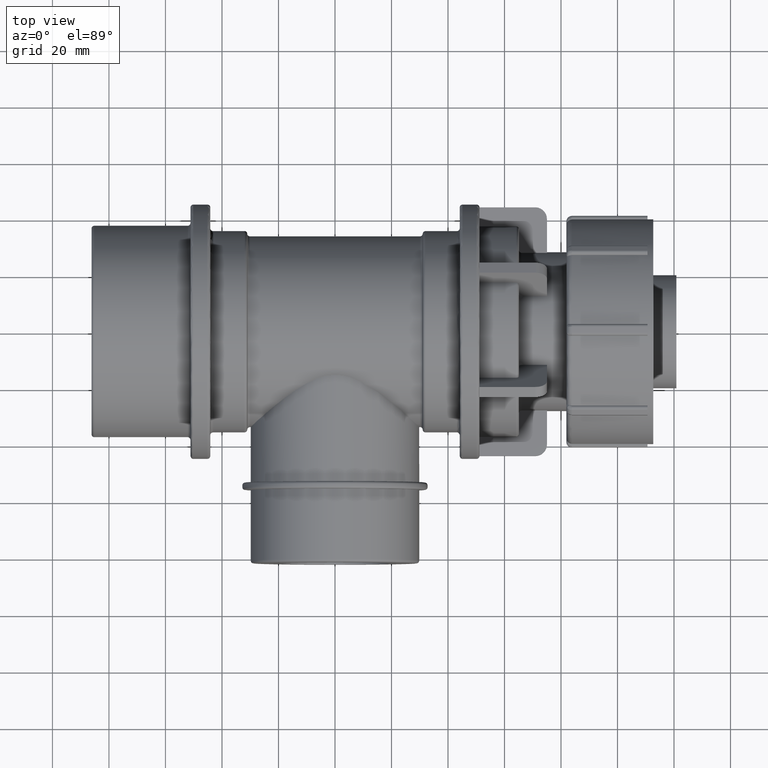
[diagram: clean part render]
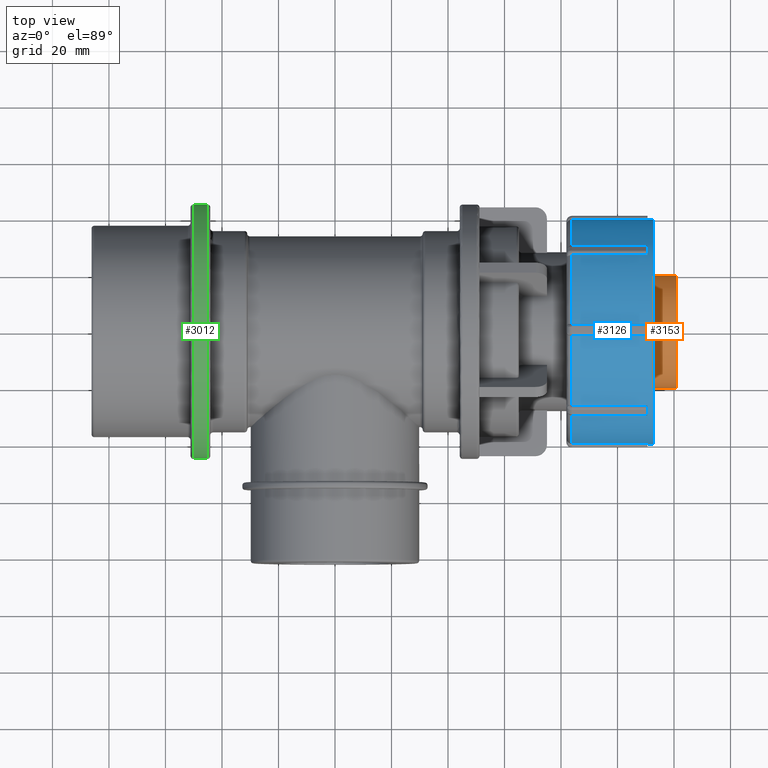
[diagram: same view with three faces highlighted in distinct colors, each labeled with its STEP entity id]
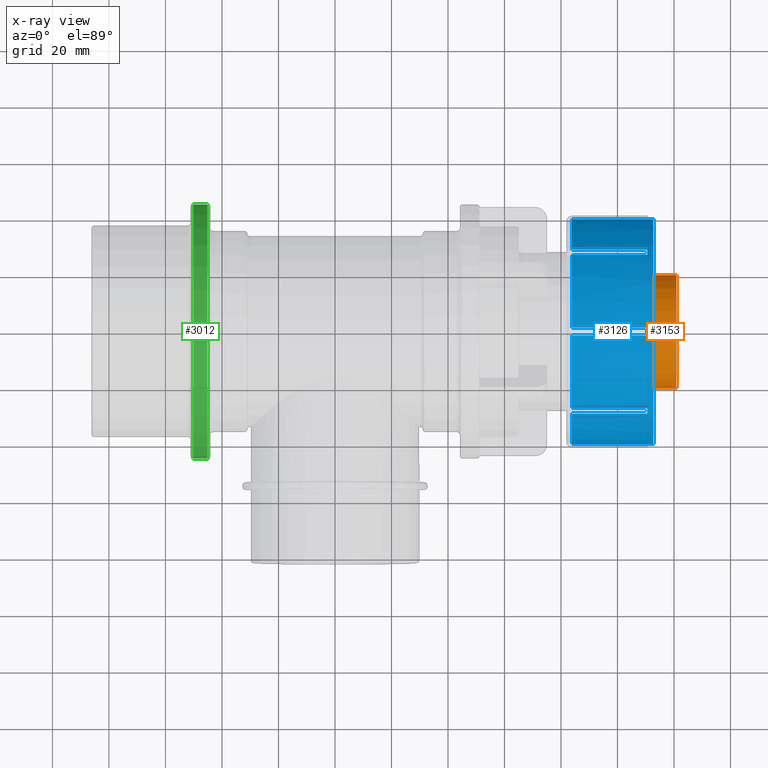
[diagram: x-ray of the same camera — body ghosted, the three highlighted faces saturated]
A machine part, top view with three faces highlighted in distinct colors.
The next image is the same camera in x-ray (body ghosted, the three faces saturated) — at least one of them is partly hidden behind the body in this view.
Their STEP definitions:

[orange] entity #3153 — the highlighted cylindrical surface (bore or boss wall) has radius 20 mm, axis along (1, 0, 0).
#681=CIRCLE('',#3512,20.);
#682=CIRCLE('',#3514,20.);
#775=FACE_BOUND('',#1196,.T.);
#946=FACE_OUTER_BOUND('',#1195,.T.);
#1195=EDGE_LOOP('',(#2711));
#1196=EDGE_LOOP('',(#2712));
#1546=VERTEX_POINT('',#5943);
#1547=VERTEX_POINT('',#5946);
#1952=EDGE_CURVE('',#1546,#1546,#681,.T.);
#1953=EDGE_CURVE('',#1547,#1547,#682,.T.);
#2711=ORIENTED_EDGE('',*,*,#1953,.F.);
#2712=ORIENTED_EDGE('',*,*,#1952,.T.);
#2988=CYLINDRICAL_SURFACE('',#3513,20.);
#3153=ADVANCED_FACE('',(#946,#775),#2988,.T.);
#3512=AXIS2_PLACEMENT_3D('',#5944,#4286,#4287);
#3513=AXIS2_PLACEMENT_3D('',#5945,#4288,#4289);
#3514=AXIS2_PLACEMENT_3D('',#5947,#4290,#4291);
#4286=DIRECTION('center_axis',(1.,0.,0.));
#4287=DIRECTION('ref_axis',(0.,0.,-1.));
#4288=DIRECTION('center_axis',(1.,0.,0.));
#4289=DIRECTION('ref_axis',(0.,1.,0.));
#4290=DIRECTION('center_axis',(1.,0.,0.));
#4291=DIRECTION('ref_axis',(0.,0.,-1.));
#5943=CARTESIAN_POINT('',(110.6,20.,0.));
#5944=CARTESIAN_POINT('Origin',(110.6,0.,0.));
#5945=CARTESIAN_POINT('Origin',(115.725,0.,0.));
#5946=CARTESIAN_POINT('',(120.85,20.,0.));
#5947=CARTESIAN_POINT('Origin',(120.85,0.,0.));

[blue] entity #3126 — the highlighted cylindrical surface (bore or boss wall) has radius 39.77 mm, axis along (1, 0, 0).
#33=LINE('',#4837,#215);
#65=LINE('',#5025,#247);
#74=LINE('',#5147,#256);
#83=LINE('',#5271,#265);
#92=LINE('',#5395,#274);
#101=LINE('',#5519,#283);
#110=LINE('',#5641,#292);
#116=LINE('',#5718,#298);
#117=LINE('',#5727,#299);
#118=LINE('',#5736,#300);
#119=LINE('',#5745,#301);
#120=LINE('',#5754,#302);
#121=LINE('',#5763,#303);
#122=LINE('',#5778,#304);
#123=LINE('',#5785,#305);
#124=LINE('',#5789,#306);
#215=VECTOR('',#3750,26.7);
#247=VECTOR('',#3846,26.7);
#256=VECTOR('',#3899,26.7);
#265=VECTOR('',#3952,26.7);
#274=VECTOR('',#4005,26.7);
#283=VECTOR('',#4058,26.7);
#292=VECTOR('',#4111,26.7);
#298=VECTOR('',#4145,26.7);
#299=VECTOR('',#4148,26.7);
#300=VECTOR('',#4151,26.7);
#301=VECTOR('',#4154,26.7);
#302=VECTOR('',#4157,26.7);
#303=VECTOR('',#4160,26.7);
#304=VECTOR('',#4175,26.7);
#305=VECTOR('',#4182,26.7);
#306=VECTOR('',#4185,26.7);
#548=CIRCLE('',#3296,39.77);
#572=CIRCLE('',#3328,39.77);
#587=CIRCLE('',#3350,39.77);
#602=CIRCLE('',#3372,39.77);
#617=CIRCLE('',#3394,39.77);
#632=CIRCLE('',#3416,39.77);
#647=CIRCLE('',#3438,39.77);
#654=CIRCLE('',#3463,39.77);
#655=CIRCLE('',#3464,39.77);
#656=CIRCLE('',#3465,39.77);
#657=CIRCLE('',#3466,39.77);
#658=CIRCLE('',#3467,39.77);
#659=CIRCLE('',#3468,39.77);
#660=CIRCLE('',#3469,39.77);
#661=CIRCLE('',#3470,39.77);
#662=CIRCLE('',#3471,39.77);
#663=CIRCLE('',#3472,39.77);
#769=FACE_BOUND('',#1163,.T.);
#919=FACE_OUTER_BOUND('',#1162,.T.);
#1162=EDGE_LOOP('',(#2548));
#1163=EDGE_LOOP('',(#2549,#2550,#2551,#2552,#2553,#2554,#2555,#2556,#2557,
#2558,#2559,#2560,#2561,#2562,#2563,#2564,#2565,#2566,#2567,#2568,#2569,
#2570,#2571,#2572,#2573,#2574,#2575,#2576,#2577,#2578,#2579,#2580));
#1374=VERTEX_POINT('',#4834);
#1375=VERTEX_POINT('',#4836);
#1378=VERTEX_POINT('',#4849);
#1422=VERTEX_POINT('',#5022);
#1423=VERTEX_POINT('',#5024);
#1426=VERTEX_POINT('',#5037);
#1439=VERTEX_POINT('',#5144);
#1440=VERTEX_POINT('',#5146);
#1443=VERTEX_POINT('',#5159);
#1456=VERTEX_POINT('',#5268);
#1457=VERTEX_POINT('',#5270);
#1460=VERTEX_POINT('',#5283);
#1473=VERTEX_POINT('',#5392);
#1474=VERTEX_POINT('',#5394);
#1477=VERTEX_POINT('',#5407);
#1490=VERTEX_POINT('',#5516);
#1491=VERTEX_POINT('',#5518);
#1494=VERTEX_POINT('',#5531);
#1507=VERTEX_POINT('',#5638);
#1508=VERTEX_POINT('',#5640);
#1511=VERTEX_POINT('',#5653);
#1517=VERTEX_POINT('',#5711);
#1518=VERTEX_POINT('',#5720);
#1519=VERTEX_POINT('',#5729);
#1520=VERTEX_POINT('',#5738);
#1521=VERTEX_POINT('',#5747);
#1522=VERTEX_POINT('',#5756);
#1523=VERTEX_POINT('',#5771);
#1524=VERTEX_POINT('',#5780);
#1525=VERTEX_POINT('',#5782);
#1526=VERTEX_POINT('',#5784);
#1527=VERTEX_POINT('',#5786);
#1528=VERTEX_POINT('',#5788);
#1672=EDGE_CURVE('',#1375,#1374,#33,.T.);
#1677=EDGE_CURVE('',#1374,#1378,#548,.T.);
#1733=EDGE_CURVE('',#1423,#1422,#65,.T.);
#1738=EDGE_CURVE('',#1422,#1426,#572,.T.);
#1762=EDGE_CURVE('',#1440,#1439,#74,.T.);
#1767=EDGE_CURVE('',#1439,#1443,#587,.T.);
#1791=EDGE_CURVE('',#1457,#1456,#83,.T.);
#1796=EDGE_CURVE('',#1456,#1460,#602,.T.);
#1820=EDGE_CURVE('',#1474,#1473,#92,.T.);
#1825=EDGE_CURVE('',#1473,#1477,#617,.T.);
#1849=EDGE_CURVE('',#1491,#1490,#101,.T.);
#1854=EDGE_CURVE('',#1490,#1494,#632,.T.);
#1878=EDGE_CURVE('',#1508,#1507,#110,.T.);
#1883=EDGE_CURVE('',#1507,#1511,#647,.T.);
#1896=EDGE_CURVE('',#1378,#1517,#116,.T.);
#1898=EDGE_CURVE('',#1426,#1518,#117,.T.);
#1900=EDGE_CURVE('',#1443,#1519,#118,.T.);
#1902=EDGE_CURVE('',#1460,#1520,#119,.T.);
#1904=EDGE_CURVE('',#1477,#1521,#120,.T.);
#1906=EDGE_CURVE('',#1494,#1522,#121,.T.);
#1908=EDGE_CURVE('',#1511,#1523,#122,.T.);
#1909=EDGE_CURVE('',#1524,#1524,#654,.T.);
#1910=EDGE_CURVE('',#1525,#1517,#655,.T.);
#1911=EDGE_CURVE('',#1525,#1526,#123,.T.);
#1912=EDGE_CURVE('',#1526,#1527,#656,.T.);
#1913=EDGE_CURVE('',#1527,#1528,#124,.T.);
#1914=EDGE_CURVE('',#1508,#1528,#657,.T.);
#1915=EDGE_CURVE('',#1491,#1523,#658,.T.);
#1916=EDGE_CURVE('',#1474,#1522,#659,.T.);
#1917=EDGE_CURVE('',#1457,#1521,#660,.T.);
#1918=EDGE_CURVE('',#1440,#1520,#661,.T.);
#1919=EDGE_CURVE('',#1423,#1519,#662,.T.);
#1920=EDGE_CURVE('',#1375,#1518,#663,.T.);
#2548=ORIENTED_EDGE('',*,*,#1909,.F.);
#2549=ORIENTED_EDGE('',*,*,#1672,.T.);
#2550=ORIENTED_EDGE('',*,*,#1677,.T.);
#2551=ORIENTED_EDGE('',*,*,#1896,.T.);
#2552=ORIENTED_EDGE('',*,*,#1910,.F.);
#2553=ORIENTED_EDGE('',*,*,#1911,.T.);
#2554=ORIENTED_EDGE('',*,*,#1912,.T.);
#2555=ORIENTED_EDGE('',*,*,#1913,.T.);
#2556=ORIENTED_EDGE('',*,*,#1914,.F.);
#2557=ORIENTED_EDGE('',*,*,#1878,.T.);
#2558=ORIENTED_EDGE('',*,*,#1883,.T.);
#2559=ORIENTED_EDGE('',*,*,#1908,.T.);
#2560=ORIENTED_EDGE('',*,*,#1915,.F.);
#2561=ORIENTED_EDGE('',*,*,#1849,.T.);
#2562=ORIENTED_EDGE('',*,*,#1854,.T.);
#2563=ORIENTED_EDGE('',*,*,#1906,.T.);
#2564=ORIENTED_EDGE('',*,*,#1916,.F.);
#2565=ORIENTED_EDGE('',*,*,#1820,.T.);
#2566=ORIENTED_EDGE('',*,*,#1825,.T.);
#2567=ORIENTED_EDGE('',*,*,#1904,.T.);
#2568=ORIENTED_EDGE('',*,*,#1917,.F.);
#2569=ORIENTED_EDGE('',*,*,#1791,.T.);
#2570=ORIENTED_EDGE('',*,*,#1796,.T.);
#2571=ORIENTED_EDGE('',*,*,#1902,.T.);
#2572=ORIENTED_EDGE('',*,*,#1918,.F.);
#2573=ORIENTED_EDGE('',*,*,#1762,.T.);
#2574=ORIENTED_EDGE('',*,*,#1767,.T.);
#2575=ORIENTED_EDGE('',*,*,#1900,.T.);
#2576=ORIENTED_EDGE('',*,*,#1919,.F.);
#2577=ORIENTED_EDGE('',*,*,#1733,.T.);
#2578=ORIENTED_EDGE('',*,*,#1738,.T.);
#2579=ORIENTED_EDGE('',*,*,#1898,.T.);
#2580=ORIENTED_EDGE('',*,*,#1920,.F.);
#2980=CYLINDRICAL_SURFACE('',#3462,39.77);
#3126=ADVANCED_FACE('',(#919,#769),#2980,.T.);
#3296=AXIS2_PLACEMENT_3D('',#4851,#3757,#3758);
#3328=AXIS2_PLACEMENT_3D('',#5039,#3853,#3854);
#3350=AXIS2_PLACEMENT_3D('',#5161,#3906,#3907);
#3372=AXIS2_PLACEMENT_3D('',#5285,#3959,#3960);
#3394=AXIS2_PLACEMENT_3D('',#5409,#4012,#4013);
#3416=AXIS2_PLACEMENT_3D('',#5533,#4065,#4066);
#3438=AXIS2_PLACEMENT_3D('',#5655,#4118,#4119);
#3462=AXIS2_PLACEMENT_3D('',#5779,#4176,#4177);
#3463=AXIS2_PLACEMENT_3D('',#5781,#4178,#4179);
#3464=AXIS2_PLACEMENT_3D('',#5783,#4180,#4181);
#3465=AXIS2_PLACEMENT_3D('',#5787,#4183,#4184);
#3466=AXIS2_PLACEMENT_3D('',#5790,#4186,#4187);
#3467=AXIS2_PLACEMENT_3D('',#5791,#4188,#4189);
#3468=AXIS2_PLACEMENT_3D('',#5792,#4190,#4191);
#3469=AXIS2_PLACEMENT_3D('',#5793,#4192,#4193);
#3470=AXIS2_PLACEMENT_3D('',#5794,#4194,#4195);
#3471=AXIS2_PLACEMENT_3D('',#5795,#4196,#4197);
#3472=AXIS2_PLACEMENT_3D('',#5796,#4198,#4199);
#3750=DIRECTION('',(1.,0.,0.));
#3757=DIRECTION('center_axis',(1.,0.,0.));
#3758=DIRECTION('ref_axis',(0.,1.,0.));
#3846=DIRECTION('',(1.,0.,0.));
#3853=DIRECTION('center_axis',(1.,0.,0.));
#3854=DIRECTION('ref_axis',(0.,1.,0.));
#3899=DIRECTION('',(1.,0.,0.));
#3906=DIRECTION('center_axis',(1.,0.,0.));
#3907=DIRECTION('ref_axis',(0.,1.,0.));
#3952=DIRECTION('',(1.,0.,0.));
#3959=DIRECTION('center_axis',(1.,0.,0.));
#3960=DIRECTION('ref_axis',(0.,1.,0.));
#4005=DIRECTION('',(1.,0.,0.));
#4012=DIRECTION('center_axis',(1.,0.,0.));
#4013=DIRECTION('ref_axis',(0.,1.,0.));
#4058=DIRECTION('',(1.,0.,0.));
#4065=DIRECTION('center_axis',(1.,0.,0.));
#4066=DIRECTION('ref_axis',(0.,1.,0.));
#4111=DIRECTION('',(1.,0.,0.));
#4118=DIRECTION('center_axis',(1.,0.,0.));
#4119=DIRECTION('ref_axis',(0.,1.,0.));
#4145=DIRECTION('',(-1.,0.,0.));
#4148=DIRECTION('',(-1.,0.,0.));
#4151=DIRECTION('',(-1.,0.,0.));
#4154=DIRECTION('',(-1.,0.,0.));
#4157=DIRECTION('',(-1.,0.,0.));
#4160=DIRECTION('',(-1.,0.,0.));
#4175=DIRECTION('',(-1.,0.,0.));
#4176=DIRECTION('center_axis',(1.,0.,0.));
#4177=DIRECTION('ref_axis',(0.,1.,0.));
#4178=DIRECTION('center_axis',(1.,0.,0.));
#4179=DIRECTION('ref_axis',(0.,0.,-1.));
#4180=DIRECTION('center_axis',(-1.,0.,0.));
#4181=DIRECTION('ref_axis',(0.,-1.,1.83697019872103E-16));
#4182=DIRECTION('',(1.,0.,0.));
#4183=DIRECTION('center_axis',(1.,0.,0.));
#4184=DIRECTION('ref_axis',(0.,1.,0.));
#4185=DIRECTION('',(-1.,0.,0.));
#4186=DIRECTION('center_axis',(-1.,0.,0.));
#4187=DIRECTION('ref_axis',(0.,-1.,1.83697019872103E-16));
#4188=DIRECTION('center_axis',(-1.,0.,0.));
#4189=DIRECTION('ref_axis',(0.,-1.,1.83697019872103E-16));
#4190=DIRECTION('center_axis',(-1.,0.,0.));
#4191=DIRECTION('ref_axis',(0.,-1.,1.83697019872103E-16));
#4192=DIRECTION('center_axis',(-1.,0.,0.));
#4193=DIRECTION('ref_axis',(0.,-1.,1.83697019872103E-16));
#4194=DIRECTION('center_axis',(-1.,0.,0.));
#4195=DIRECTION('ref_axis',(0.,-1.,1.83697019872103E-16));
#4196=DIRECTION('center_axis',(-1.,0.,0.));
#4197=DIRECTION('ref_axis',(0.,-1.,1.83697019872103E-16));
#4198=DIRECTION('center_axis',(-1.,0.,0.));
#4199=DIRECTION('ref_axis',(0.,-1.,1.83697019872103E-16));
#4834=CARTESIAN_POINT('',(110.6,26.6346829134193,-29.5338207162841));
#4836=CARTESIAN_POINT('',(83.9,26.6346829134193,-29.5338207162841));
#4837=CARTESIAN_POINT('',(97.275,26.6346829134193,-29.5338207162841));
#4849=CARTESIAN_POINT('',(110.6,29.5338207162841,-26.6346829134193));
#4851=CARTESIAN_POINT('Origin',(110.6,0.,0.));
#5022=CARTESIAN_POINT('',(110.6,-2.05000000000001,-39.7171298056645));
#5024=CARTESIAN_POINT('',(83.9,-2.05000000000001,-39.7171298056645));
#5025=CARTESIAN_POINT('',(97.275,-2.05000000000001,-39.7171298056645));
#5037=CARTESIAN_POINT('',(110.6,2.04999999999999,-39.7171298056645));
#5039=CARTESIAN_POINT('Origin',(110.6,0.,0.));
#5144=CARTESIAN_POINT('',(110.6,-29.5338207162841,-26.6346829134193));
#5146=CARTESIAN_POINT('',(83.9,-29.5338207162841,-26.6346829134193));
#5147=CARTESIAN_POINT('',(97.275,-29.5338207162841,-26.6346829134193));
#5159=CARTESIAN_POINT('',(110.6,-26.6346829134193,-29.5338207162841));
#5161=CARTESIAN_POINT('Origin',(110.6,0.,0.));
#5268=CARTESIAN_POINT('',(110.6,-39.7171298056645,2.05000000000001));
#5270=CARTESIAN_POINT('',(83.9,-39.7171298056645,2.05000000000001));
#5271=CARTESIAN_POINT('',(97.275,-39.7171298056645,2.05000000000001));
#5283=CARTESIAN_POINT('',(110.6,-39.7171298056645,-2.04999999999999));
#5285=CARTESIAN_POINT('Origin',(110.6,0.,0.));
#5392=CARTESIAN_POINT('',(110.6,-26.6346829134193,29.5338207162841));
#5394=CARTESIAN_POINT('',(83.9,-26.6346829134193,29.5338207162841));
#5395=CARTESIAN_POINT('',(97.275,-26.6346829134193,29.5338207162841));
#5407=CARTESIAN_POINT('',(110.6,-29.5338207162841,26.6346829134193));
#5409=CARTESIAN_POINT('Origin',(110.6,0.,0.));
#5516=CARTESIAN_POINT('',(110.6,2.05,39.7171298056645));
#5518=CARTESIAN_POINT('',(83.9,2.05,39.7171298056645));
#5519=CARTESIAN_POINT('',(97.275,2.05,39.7171298056645));
#5531=CARTESIAN_POINT('',(110.6,-2.05,39.7171298056645));
#5533=CARTESIAN_POINT('Origin',(110.6,0.,0.));
#5638=CARTESIAN_POINT('',(110.6,29.5338207162841,26.6346829134193));
#5640=CARTESIAN_POINT('',(83.9,29.5338207162841,26.6346829134193));
#5641=CARTESIAN_POINT('',(97.275,29.5338207162841,26.6346829134193));
#5653=CARTESIAN_POINT('',(110.6,26.6346829134193,29.5338207162841));
#5655=CARTESIAN_POINT('Origin',(110.6,0.,0.));
#5711=CARTESIAN_POINT('',(83.9,29.5338207162841,-26.6346829134193));
#5718=CARTESIAN_POINT('',(97.275,29.5338207162841,-26.6346829134193));
#5720=CARTESIAN_POINT('',(83.9,2.04999999999999,-39.7171298056645));
#5727=CARTESIAN_POINT('',(97.275,2.04999999999999,-39.7171298056645));
#5729=CARTESIAN_POINT('',(83.9,-26.6346829134193,-29.5338207162841));
#5736=CARTESIAN_POINT('',(97.275,-26.6346829134193,-29.5338207162841));
#5738=CARTESIAN_POINT('',(83.9,-39.7171298056645,-2.04999999999999));
#5745=CARTESIAN_POINT('',(97.275,-39.7171298056645,-2.04999999999999));
#5747=CARTESIAN_POINT('',(83.9,-29.5338207162841,26.6346829134193));
#5754=CARTESIAN_POINT('',(97.275,-29.5338207162841,26.6346829134193));
#5756=CARTESIAN_POINT('',(83.9,-2.05,39.7171298056645));
#5763=CARTESIAN_POINT('',(97.275,-2.05,39.7171298056645));
#5771=CARTESIAN_POINT('',(83.9,26.6346829134193,29.5338207162841));
#5778=CARTESIAN_POINT('',(97.275,26.6346829134193,29.5338207162841));
#5779=CARTESIAN_POINT('Origin',(97.275,0.,0.));
#5780=CARTESIAN_POINT('',(112.65,39.77,0.));
#5781=CARTESIAN_POINT('Origin',(112.65,0.,0.));
#5782=CARTESIAN_POINT('',(83.9,39.7171298056645,-2.05));
#5783=CARTESIAN_POINT('Origin',(83.9,0.,0.));
#5784=CARTESIAN_POINT('',(110.6,39.7171298056645,-2.05));
#5785=CARTESIAN_POINT('',(97.275,39.7171298056645,-2.05));
#5786=CARTESIAN_POINT('',(110.6,39.7171298056645,2.05));
#5787=CARTESIAN_POINT('Origin',(110.6,0.,0.));
#5788=CARTESIAN_POINT('',(83.9,39.7171298056645,2.05));
#5789=CARTESIAN_POINT('',(97.275,39.7171298056645,2.05));
#5790=CARTESIAN_POINT('Origin',(83.9,0.,0.));
#5791=CARTESIAN_POINT('Origin',(83.9,0.,0.));
#5792=CARTESIAN_POINT('Origin',(83.9,0.,0.));
#5793=CARTESIAN_POINT('Origin',(83.9,0.,0.));
#5794=CARTESIAN_POINT('Origin',(83.9,0.,0.));
#5795=CARTESIAN_POINT('Origin',(83.9,0.,0.));
#5796=CARTESIAN_POINT('Origin',(83.9,0.,0.));

[green] entity #3012 — the highlighted cylindrical surface (bore or boss wall) has radius 45 mm, axis along (1, 0, 0).
#517=CIRCLE('',#3239,45.);
#518=CIRCLE('',#3241,45.);
#745=FACE_BOUND('',#1025,.T.);
#805=FACE_OUTER_BOUND('',#1024,.T.);
#1024=EDGE_LOOP('',(#2078));
#1025=EDGE_LOOP('',(#2079));
#1342=VERTEX_POINT('',#4710);
#1343=VERTEX_POINT('',#4713);
#1636=EDGE_CURVE('',#1342,#1342,#517,.T.);
#1637=EDGE_CURVE('',#1343,#1343,#518,.T.);
#2078=ORIENTED_EDGE('',*,*,#1637,.F.);
#2079=ORIENTED_EDGE('',*,*,#1636,.F.);
#2938=CYLINDRICAL_SURFACE('',#3240,45.);
#3012=ADVANCED_FACE('',(#805,#745),#2938,.T.);
#3239=AXIS2_PLACEMENT_3D('',#4711,#3636,#3637);
#3240=AXIS2_PLACEMENT_3D('',#4712,#3638,#3639);
#3241=AXIS2_PLACEMENT_3D('',#4714,#3640,#3641);
#3636=DIRECTION('center_axis',(-1.,0.,0.));
#3637=DIRECTION('ref_axis',(0.,-1.,1.83697019872103E-16));
#3638=DIRECTION('center_axis',(1.,0.,0.));
#3639=DIRECTION('ref_axis',(0.,1.,0.));
#3640=DIRECTION('center_axis',(1.,0.,0.));
#3641=DIRECTION('ref_axis',(0.,-1.,1.83697019872103E-16));
#4710=CARTESIAN_POINT('',(-50.15,45.,-1.37772764904077E-14));
#4711=CARTESIAN_POINT('Origin',(-50.15,0.,0.));
#4712=CARTESIAN_POINT('Origin',(-47.65,0.,0.));
#4713=CARTESIAN_POINT('',(-45.15,45.,-2.75545529808154E-15));
#4714=CARTESIAN_POINT('Origin',(-45.15,0.,0.));